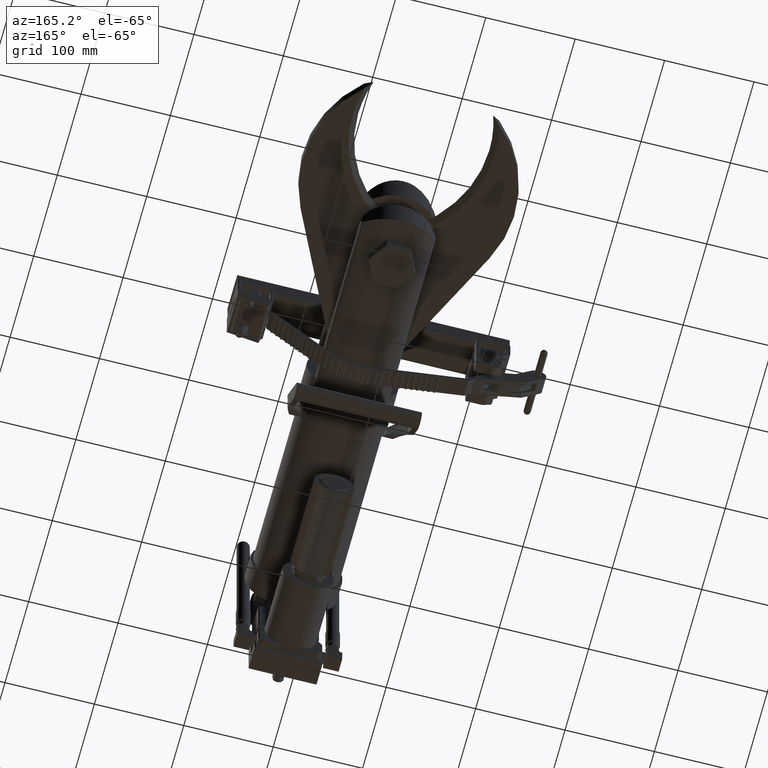
[diagram: clean part render]
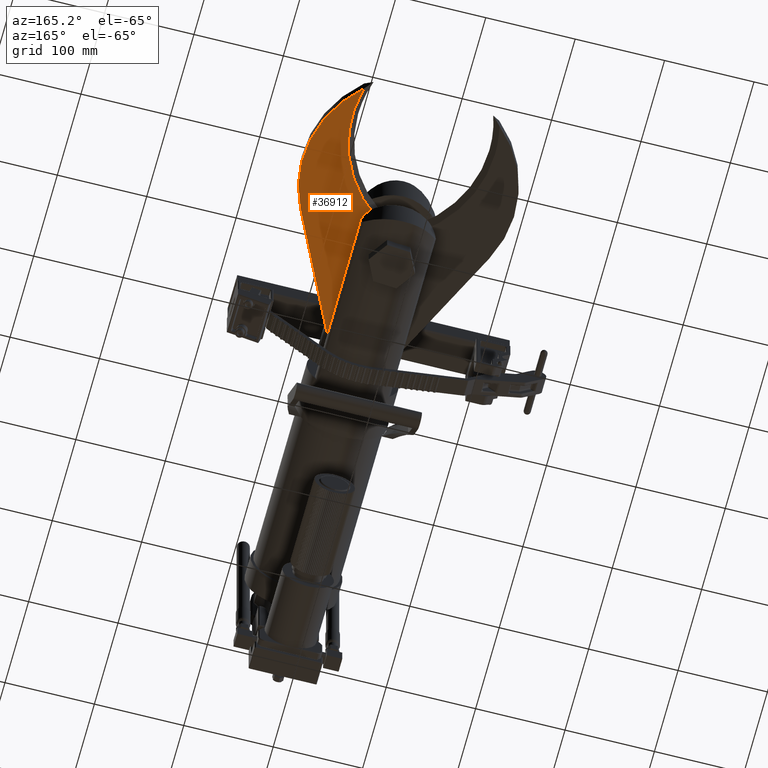
[diagram: same view with one face highlighted and labeled with its STEP entity id]
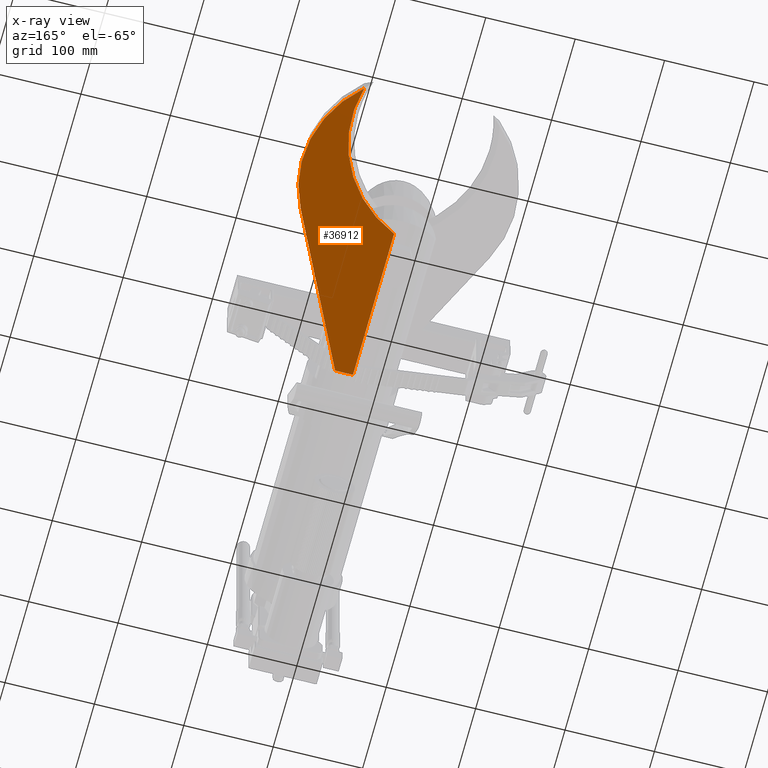
[diagram: x-ray of the same camera — body ghosted, the highlighted face saturated]
A machine part, auxiliary view. The second image highlights one B-rep face of the part: STEP entity #36912.
The next image is the same camera in x-ray: the body ghosted, the highlighted face saturated — about 0% of this face is hidden behind the body in this view.
In plain terms, the highlighted planar face has unit normal (0, -0, -1).
Its self-contained STEP definition (entity closure, byte-faithful):
#9864 = FACE_OUTER_BOUND ( 'NONE', #59536, .T. ) ;
#14034 = AXIS2_PLACEMENT_3D ( 'NONE', #17450, #17469, #17471 ) ;
#14972 = AXIS2_PLACEMENT_3D ( 'NONE', #27228, #27232, #27233 ) ;
#14976 = AXIS2_PLACEMENT_3D ( 'NONE', #27224, #27226, #27227 ) ;
#17450 = CARTESIAN_POINT ( 'NONE',  ( 2.325871338547910400, 23.08275146045768300, -2.156250000000000000 ) ) ;
#17461 = PLANE ( 'NONE',  #14034 ) ;
#17469 = DIRECTION ( 'NONE',  ( 0.0000000000000000000, 0.0000000000000000000, 1.000000000000000000 ) ) ;
#17471 = DIRECTION ( 'NONE',  ( 1.000000000000000000, 0.0000000000000000000, -0.0000000000000000000 ) ) ;
#24909 = LINE ( 'NONE', #27204, #24910 ) ;
#24910 = VECTOR ( 'NONE', #27205, 39.37007874015748100 ) ;
#24915 = LINE ( 'NONE', #27214, #24916 ) ;
#24916 = VECTOR ( 'NONE', #27215, 39.37007874015748100 ) ;
#24919 = LINE ( 'NONE', #27219, #24920 ) ;
#24920 = VECTOR ( 'NONE', #27220, 39.37007874015748900 ) ;
#24925 = CIRCLE ( 'NONE', #14976, 5.234871499629723400 ) ;
#24927 = CIRCLE ( 'NONE', #14972, 5.467324895904440000 ) ;
#27204 = CARTESIAN_POINT ( 'NONE',  ( 0.0000000000000000000, 11.27935136971833600, -2.156250000000000000 ) ) ;
#27205 = DIRECTION ( 'NONE',  ( -3.829766912983409300E-017, 1.000000000000000000, 0.0000000000000000000 ) ) ;
#27214 = CARTESIAN_POINT ( 'NONE',  ( -0.7876068982538693100, 11.27935136971833600, -2.156250000000000000 ) ) ;
#27215 = DIRECTION ( 'NONE',  ( 1.000000000000000000, 0.0000000000000000000, 0.0000000000000000000 ) ) ;
#27219 = CARTESIAN_POINT ( 'NONE',  ( -0.7876068982538693100, 11.27935136971833600, -2.156250000000000000 ) ) ;
#27220 = DIRECTION ( 'NONE',  ( 0.4336653776980031200, -0.9010739926254935900, -0.0000000000000000000 ) ) ;
#27224 = CARTESIAN_POINT ( 'NONE',  ( 0.5591927157440839100, 20.55218153089961700, -2.156250000000000000 ) ) ;
#27226 = DIRECTION ( 'NONE',  ( 0.0000000000000000000, 0.0000000000000000000, 1.000000000000000000 ) ) ;
#27227 = DIRECTION ( 'NONE',  ( 1.000000000000000000, 0.0000000000000000000, 0.0000000000000000000 ) ) ;
#27228 = CARTESIAN_POINT ( 'NONE',  ( 2.325871338547910400, 23.08275146045768300, -2.156250000000000000 ) ) ;
#27232 = DIRECTION ( 'NONE',  ( -0.0000000000000000000, -0.0000000000000000000, -1.000000000000000000 ) ) ;
#27233 = DIRECTION ( 'NONE',  ( 1.000000000000000000, 0.0000000000000000000, 0.0000000000000000000 ) ) ;
#29645 = CARTESIAN_POINT ( 'NONE',  ( -2.625487081293748100E-016, 18.13482623528522800, -2.156250000000000000 ) ) ;
#29646 = CARTESIAN_POINT ( 'NONE',  ( 0.0000000000000000000, 11.27935136971833600, -2.156250000000000000 ) ) ;
#29647 = CARTESIAN_POINT ( 'NONE',  ( -0.7876068982538693100, 11.27935136971833600, -2.156250000000000000 ) ) ;
#29649 = CARTESIAN_POINT ( 'NONE',  ( -4.157813847308677400, 18.28199900481217800, -2.156250000000000000 ) ) ;
#29651 = CARTESIAN_POINT ( 'NONE',  ( -2.977482635576713200, 24.41169018835790200, -2.156250000000000000 ) ) ;
#36912 = ADVANCED_FACE ( 'NONE', ( #9864 ), #17461, .T. ) ;
#38063 = EDGE_CURVE ( 'NONE', #38925, #38924, #24909, .T. ) ;
#38067 = EDGE_CURVE ( 'NONE', #38926, #38925, #24915, .T. ) ;
#38070 = EDGE_CURVE ( 'NONE', #38928, #38926, #24919, .T. ) ;
#38072 = EDGE_CURVE ( 'NONE', #38930, #38928, #24925, .T. ) ;
#38074 = EDGE_CURVE ( 'NONE', #38924, #38930, #24927, .T. ) ;
#38924 = VERTEX_POINT ( 'NONE', #29645 ) ;
#38925 = VERTEX_POINT ( 'NONE', #29646 ) ;
#38926 = VERTEX_POINT ( 'NONE', #29647 ) ;
#38928 = VERTEX_POINT ( 'NONE', #29649 ) ;
#38930 = VERTEX_POINT ( 'NONE', #29651 ) ;
#47626 = ORIENTED_EDGE ( 'NONE', *, *, #38063, .T. ) ;
#47627 = ORIENTED_EDGE ( 'NONE', *, *, #38074, .T. ) ;
#47628 = ORIENTED_EDGE ( 'NONE', *, *, #38072, .T. ) ;
#47629 = ORIENTED_EDGE ( 'NONE', *, *, #38070, .T. ) ;
#47630 = ORIENTED_EDGE ( 'NONE', *, *, #38067, .T. ) ;
#59536 = EDGE_LOOP ( 'NONE', ( #47626, #47627, #47628, #47629, #47630 ) ) ;